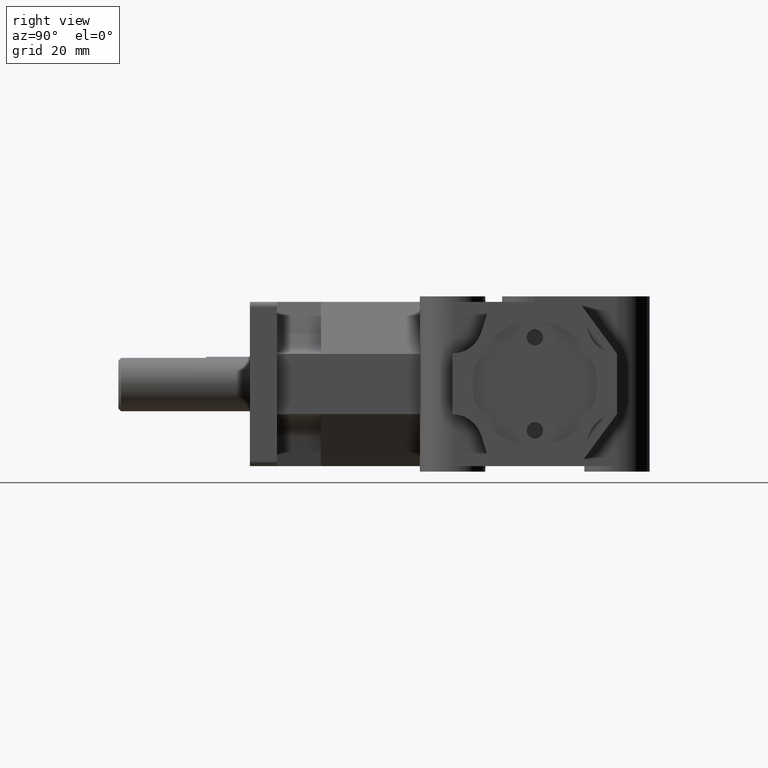
[diagram: clean part render]
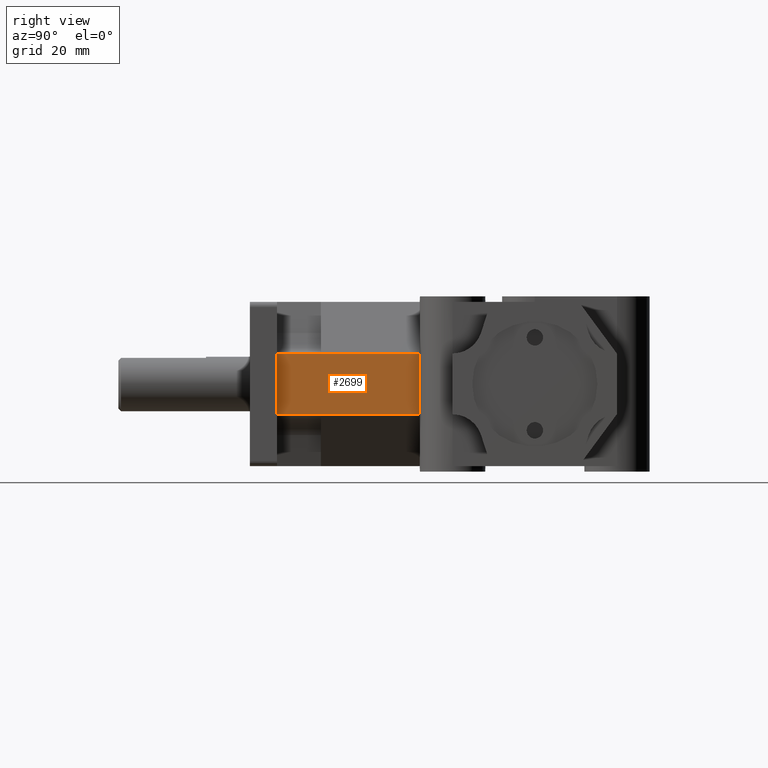
[diagram: same view with one face highlighted and labeled with its STEP entity id]
A machine part, right view. The second image highlights one B-rep face of the part: STEP entity #2699.
In plain terms, the highlighted planar face has unit normal (1, 0, 0).
Its self-contained STEP definition (entity closure, byte-faithful):
#156=PLANE('',#2971);
#306=FACE_OUTER_BOUND('',#491,.T.);
#491=EDGE_LOOP('',(#2499,#2500,#2501,#2502));
#533=LINE('',#3942,#798);
#653=LINE('',#4240,#918);
#746=LINE('',#4506,#1011);
#756=LINE('',#4525,#1021);
#798=VECTOR('',#3163,1.);
#918=VECTOR('',#3441,1.);
#1011=VECTOR('',#3712,1.);
#1021=VECTOR('',#3740,1.);
#1199=VERTEX_POINT('',#3939);
#1200=VERTEX_POINT('',#3941);
#1299=VERTEX_POINT('',#4238);
#1362=VERTEX_POINT('',#4469);
#1458=EDGE_CURVE('',#1200,#1199,#533,.T.);
#1609=EDGE_CURVE('',#1299,#1199,#653,.T.);
#1737=EDGE_CURVE('',#1299,#1362,#746,.T.);
#1748=EDGE_CURVE('',#1200,#1362,#756,.T.);
#2499=ORIENTED_EDGE('',*,*,#1737,.T.);
#2500=ORIENTED_EDGE('',*,*,#1748,.F.);
#2501=ORIENTED_EDGE('',*,*,#1458,.T.);
#2502=ORIENTED_EDGE('',*,*,#1609,.F.);
#2699=ADVANCED_FACE('',(#306),#156,.T.);
#2971=AXIS2_PLACEMENT_3D('',#4532,#3753,#3754);
#3163=DIRECTION('',(0.,0.,-1.));
#3441=DIRECTION('',(0.,-1.,0.));
#3712=DIRECTION('',(0.,0.,1.));
#3740=DIRECTION('',(0.,1.,0.));
#3753=DIRECTION('center_axis',(1.,0.,0.));
#3754=DIRECTION('ref_axis',(0.,-1.,0.));
#3939=CARTESIAN_POINT('',(0.9375,0.31,-0.34375));
#3941=CARTESIAN_POINT('',(0.9375,0.31,0.34375));
#3942=CARTESIAN_POINT('',(0.9375,0.31,0.));
#4238=CARTESIAN_POINT('',(0.9375,1.9375,-0.34375));
#4240=CARTESIAN_POINT('',(0.9375,1.36489507691196,-0.34375));
#4469=CARTESIAN_POINT('',(0.9375,1.9375,0.34375));
#4506=CARTESIAN_POINT('',(0.9375,1.9375,0.));
#4525=CARTESIAN_POINT('',(0.9375,1.36489507691196,0.34375));
#4532=CARTESIAN_POINT('Origin',(0.9375,0.31,0.));